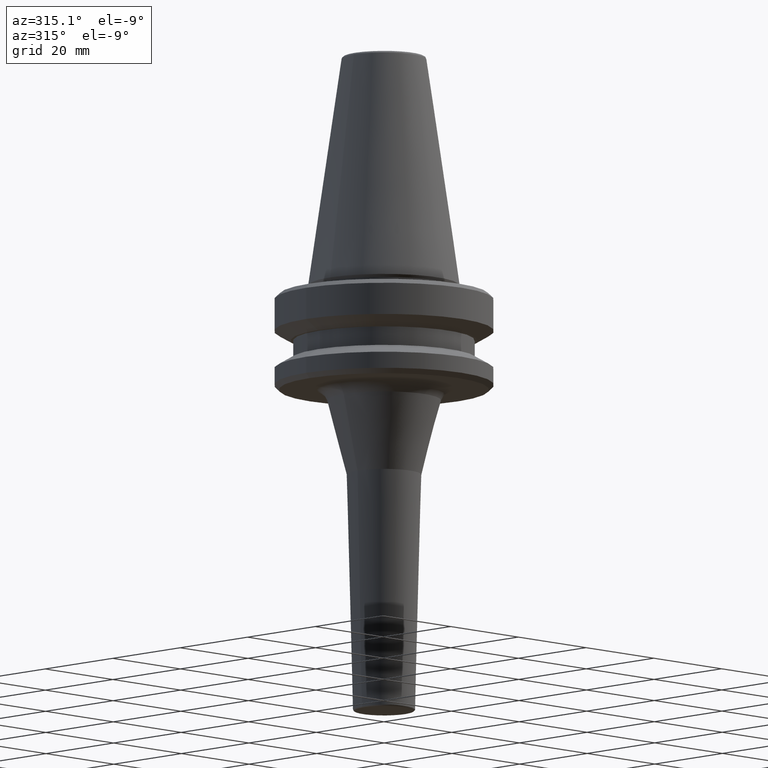
[diagram: clean part render]
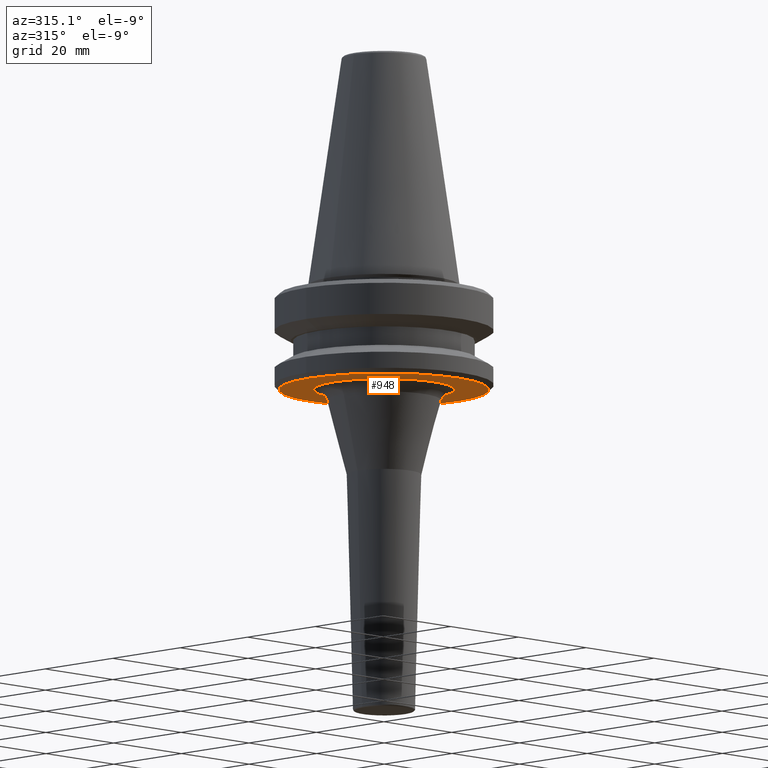
[diagram: same view with one face highlighted and labeled with its STEP entity id]
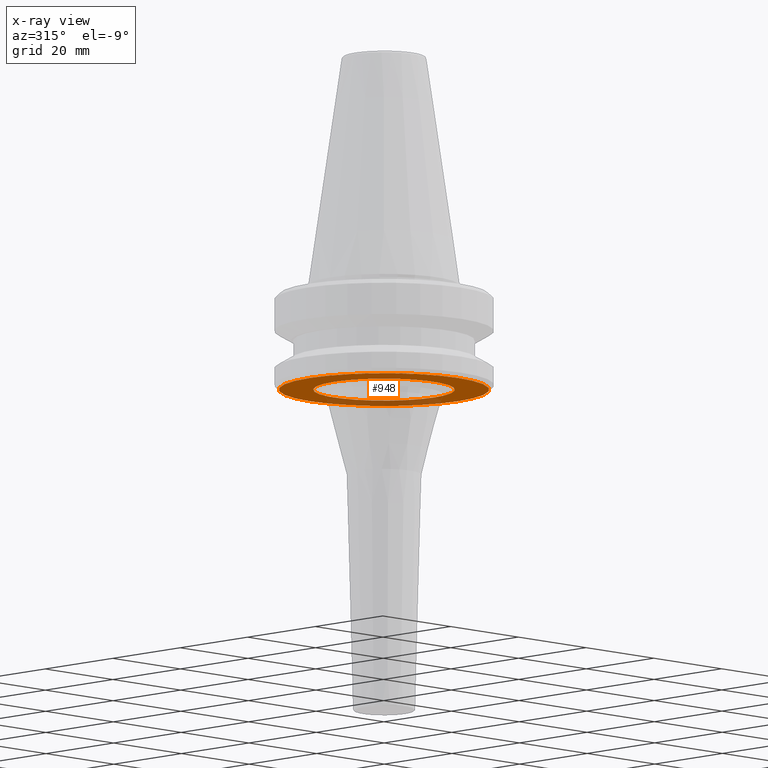
[diagram: x-ray of the same camera — body ghosted, the highlighted face saturated]
A machine part, auxiliary view. The second image highlights one B-rep face of the part: STEP entity #948.
The next image is the same camera in x-ray: the body ghosted, the highlighted face saturated — about 22% of this face is hidden behind the body in this view.
In plain terms, the highlighted planar face has unit normal (0, -0, 1).
Its self-contained STEP definition (entity closure, byte-faithful):
#27 = DIRECTION ( 'NONE',  ( 1.000000000000000000, 0.0000000000000000000, 0.0000000000000000000 ) ) ;
#32 = DIRECTION ( 'NONE',  ( 1.000000000000000000, 0.0000000000000000000, 0.0000000000000000000 ) ) ;
#36 = CARTESIAN_POINT ( 'NONE',  ( 0.0000000000000000000, 0.0000000000000000000, -21.99999999999965900 ) ) ;
#98 = VERTEX_POINT ( 'NONE', #1019 ) ;
#99 = ORIENTED_EDGE ( 'NONE', *, *, #968, .F. ) ;
#105 = AXIS2_PLACEMENT_3D ( 'NONE', #998, #516, #32 ) ;
#127 = DIRECTION ( 'NONE',  ( 1.000000000000000000, 0.0000000000000000000, 0.0000000000000000000 ) ) ;
#174 = CARTESIAN_POINT ( 'NONE',  ( 14.81840733011012500, 0.0000000000000000000, -21.99999999999966200 ) ) ;
#192 = FACE_BOUND ( 'NONE', #339, .T. ) ;
#206 = CIRCLE ( 'NONE', #811, 22.00000000000013100 ) ;
#209 = EDGE_CURVE ( 'NONE', #654, #98, #206, .T. ) ;
#279 = AXIS2_PLACEMENT_3D ( 'NONE', #993, #513, #27 ) ;
#287 = CARTESIAN_POINT ( 'NONE',  ( 0.0000000000000000000, 0.0000000000000000000, -21.99999999999979700 ) ) ;
#305 = EDGE_LOOP ( 'NONE', ( #99, #341 ) ) ;
#339 = EDGE_LOOP ( 'NONE', ( #888, #916 ) ) ;
#341 = ORIENTED_EDGE ( 'NONE', *, *, #209, .F. ) ;
#360 = DIRECTION ( 'NONE',  ( 1.000000000000000000, 0.0000000000000000000, 0.0000000000000000000 ) ) ;
#391 = VERTEX_POINT ( 'NONE', #174 ) ;
#392 = CARTESIAN_POINT ( 'NONE',  ( -14.81840733011012500, 1.814731510528104000E-015, -21.99999999999966200 ) ) ;
#421 = AXIS2_PLACEMENT_3D ( 'NONE', #287, #828, #360 ) ;
#459 = CARTESIAN_POINT ( 'NONE',  ( -22.00000000000013100, 2.755455298081553800E-015, -21.99999999999979700 ) ) ;
#513 = DIRECTION ( 'NONE',  ( 0.0000000000000000000, -0.0000000000000000000, 1.000000000000000000 ) ) ;
#516 = DIRECTION ( 'NONE',  ( -0.0000000000000000000, -0.0000000000000000000, 1.000000000000000000 ) ) ;
#560 = CIRCLE ( 'NONE', #105, 14.81840733011019400 ) ;
#572 = CARTESIAN_POINT ( 'NONE',  ( 0.0000000000000000000, 0.0000000000000000000, -21.99999999999979700 ) ) ;
#601 = DIRECTION ( 'NONE',  ( -0.0000000000000000000, -0.0000000000000000000, 1.000000000000000000 ) ) ;
#649 = AXIS2_PLACEMENT_3D ( 'NONE', #36, #601, #127 ) ;
#654 = VERTEX_POINT ( 'NONE', #459 ) ;
#761 = CIRCLE ( 'NONE', #421, 22.00000000000013100 ) ;
#787 = CIRCLE ( 'NONE', #649, 14.81840733011019400 ) ;
#811 = AXIS2_PLACEMENT_3D ( 'NONE', #572, #879, #1050 ) ;
#828 = DIRECTION ( 'NONE',  ( -0.0000000000000000000, -0.0000000000000000000, 1.000000000000000000 ) ) ;
#879 = DIRECTION ( 'NONE',  ( -0.0000000000000000000, -0.0000000000000000000, 1.000000000000000000 ) ) ;
#888 = ORIENTED_EDGE ( 'NONE', *, *, #969, .T. ) ;
#903 = VERTEX_POINT ( 'NONE', #392 ) ;
#907 = PLANE ( 'NONE',  #279 ) ;
#916 = ORIENTED_EDGE ( 'NONE', *, *, #991, .T. ) ;
#948 = ADVANCED_FACE ( 'NONE', ( #982, #192 ), #907, .F. ) ;
#968 = EDGE_CURVE ( 'NONE', #98, #654, #761, .T. ) ;
#969 = EDGE_CURVE ( 'NONE', #391, #903, #560, .T. ) ;
#982 = FACE_OUTER_BOUND ( 'NONE', #305, .T. ) ;
#991 = EDGE_CURVE ( 'NONE', #903, #391, #787, .T. ) ;
#993 = CARTESIAN_POINT ( 'NONE',  ( 0.0000000000000000000, 14.81840733011019400, -21.99999999999973000 ) ) ;
#998 = CARTESIAN_POINT ( 'NONE',  ( 0.0000000000000000000, 0.0000000000000000000, -21.99999999999965900 ) ) ;
#1019 = CARTESIAN_POINT ( 'NONE',  ( 22.00000000000013100, 0.0000000000000000000, -21.99999999999979700 ) ) ;
#1050 = DIRECTION ( 'NONE',  ( 1.000000000000000000, 0.0000000000000000000, 0.0000000000000000000 ) ) ;